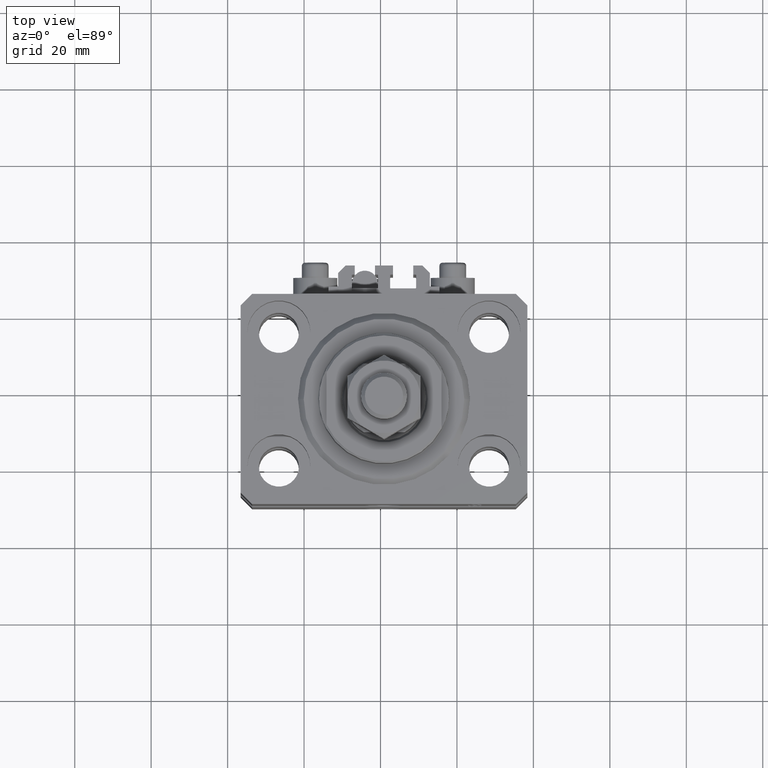
[diagram: clean part render]
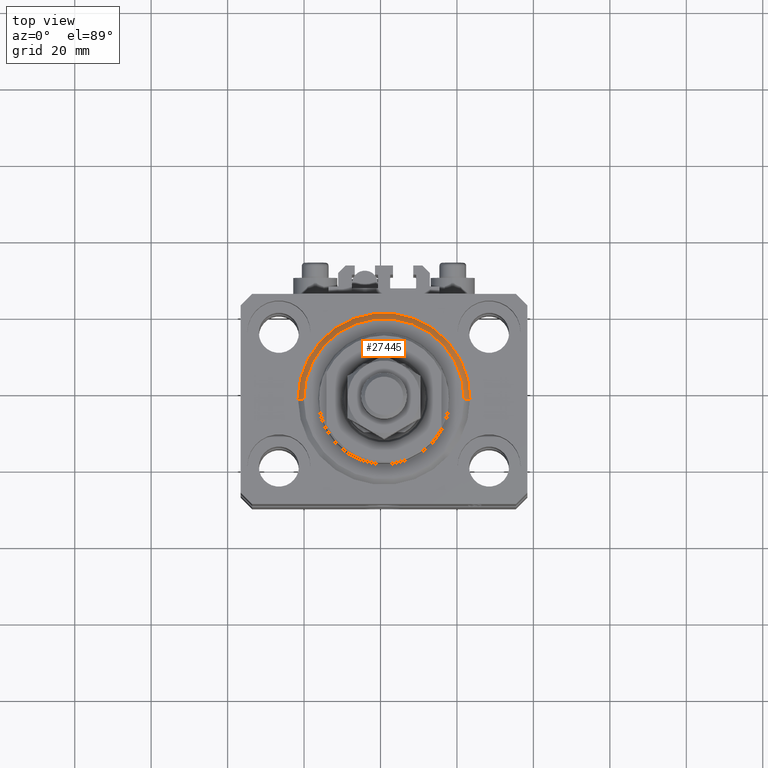
[diagram: same view with one face highlighted and labeled with its STEP entity id]
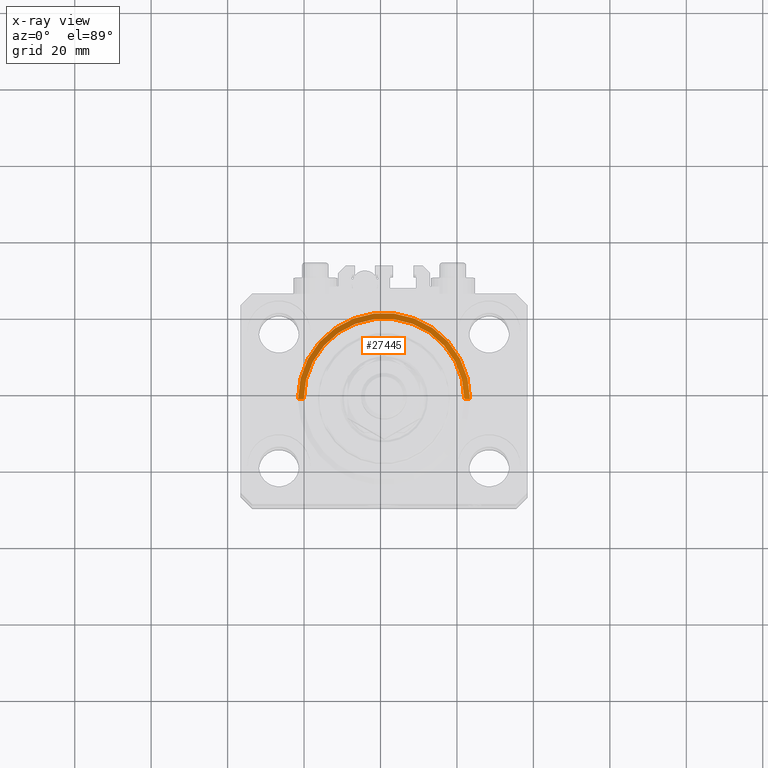
[diagram: x-ray of the same camera — body ghosted, the highlighted face saturated]
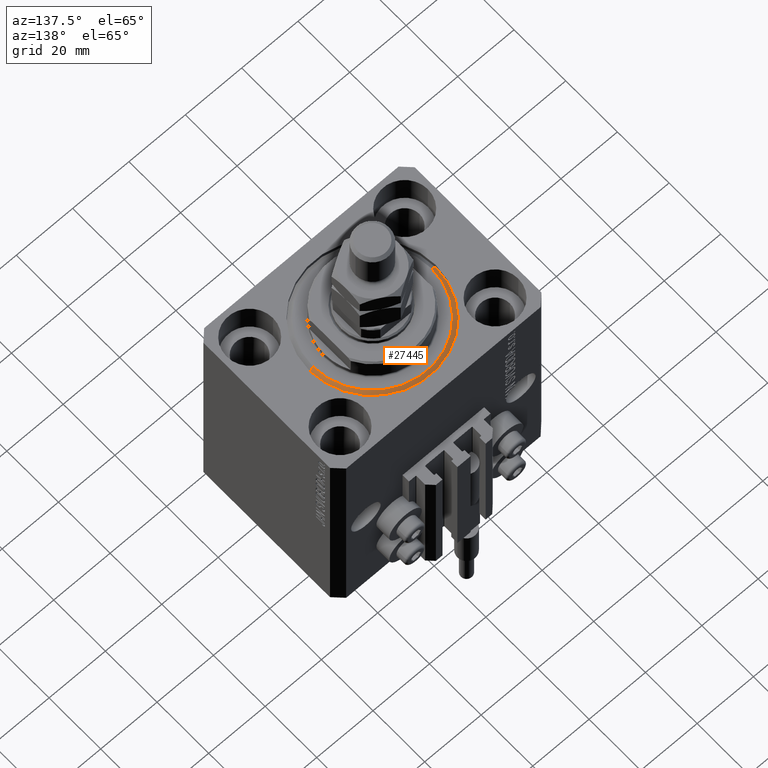
[diagram: same view with one face highlighted and labeled with its STEP entity id]
A machine part, top view. The second image highlights one B-rep face of the part: STEP entity #27445.
The next image is the same camera in x-ray: the body ghosted, the highlighted face saturated — about 0% of this face is hidden behind the body in this view.
A second angle (auxiliary view) of the same face is appended — the face is thin or edge-on in the first view.
In plain terms, the highlighted conical surface has half-angle 45 deg.
Its self-contained STEP definition (entity closure, byte-faithful):
#394 = EDGE_CURVE ( 'NONE', #16457, #32669, #44484, .T. ) ;
#2085 = ORIENTED_EDGE ( 'NONE', *, *, #12846, .T. ) ;
#2578 = EDGE_LOOP ( 'NONE', ( #43697, #2085, #35960, #19010 ) ) ;
#6431 = DIRECTION ( 'NONE',  ( 0.7071067811865500152, 0.000000000000000000, 0.7071067811865451302 ) ) ;
#8783 = AXIS2_PLACEMENT_3D ( 'NONE', #27981, #27742, #16058 ) ;
#10737 = DIRECTION ( 'NONE',  ( -0.7071067811865500152, 8.659560562354963673E-17, 0.7071067811865451302 ) ) ;
#11076 = CARTESIAN_POINT ( 'NONE',  ( 20.99999999999998934, 0.000000000000000000, 0.000000000000000000 ) ) ;
#12309 = DIRECTION ( 'NONE',  ( 1.000000000000000000, 0.000000000000000000, 0.000000000000000000 ) ) ;
#12846 = EDGE_CURVE ( 'NONE', #45483, #37075, #14963, .T. ) ;
#13743 = CONICAL_SURFACE ( 'NONE', #37573, 22.50000000000000355, 0.7853981633974517207 ) ;
#14963 = LINE ( 'NONE', #41069, #36322 ) ;
#16058 = DIRECTION ( 'NONE',  ( 1.000000000000000000, 0.000000000000000000, 0.000000000000000000 ) ) ;
#16378 = DIRECTION ( 'NONE',  ( 1.000000000000000000, 0.000000000000000000, 0.000000000000000000 ) ) ;
#16457 = VERTEX_POINT ( 'NONE', #11076 ) ;
#16718 = EDGE_CURVE ( 'NONE', #32669, #37075, #47552, .T. ) ;
#19010 = ORIENTED_EDGE ( 'NONE', *, *, #394, .F. ) ;
#19527 = EDGE_CURVE ( 'NONE', #45483, #16457, #21463, .T. ) ;
#20587 = FACE_OUTER_BOUND ( 'NONE', #2578, .T. ) ;
#20732 = CARTESIAN_POINT ( 'NONE',  ( 0.000000000000000000, 0.000000000000000000, 1.500000000000001332 ) ) ;
#21463 = CIRCLE ( 'NONE', #8783, 20.99999999999998934 ) ;
#24463 = DIRECTION ( 'NONE',  ( -0.000000000000000000, -0.000000000000000000, 1.000000000000000000 ) ) ;
#25154 = CARTESIAN_POINT ( 'NONE',  ( -20.99999999999998934, 2.663606788145492628E-15, 0.000000000000000000 ) ) ;
#26908 = AXIS2_PLACEMENT_3D ( 'NONE', #20732, #24463, #12309 ) ;
#27445 = ADVANCED_FACE ( 'NONE', ( #20587 ), #13743, .T. ) ;
#27742 = DIRECTION ( 'NONE',  ( -0.000000000000000000, -0.000000000000000000, -1.000000000000000000 ) ) ;
#27981 = CARTESIAN_POINT ( 'NONE',  ( 0.000000000000000000, 0.000000000000000000, 0.000000000000000000 ) ) ;
#32669 = VERTEX_POINT ( 'NONE', #45949 ) ;
#35960 = ORIENTED_EDGE ( 'NONE', *, *, #16718, .F. ) ;
#36289 = CARTESIAN_POINT ( 'NONE',  ( 22.50000000000000355, 0.000000000000000000, 1.500000000000001332 ) ) ;
#36322 = VECTOR ( 'NONE', #10737, 1000.000000000000114 ) ;
#37075 = VERTEX_POINT ( 'NONE', #46470 ) ;
#37573 = AXIS2_PLACEMENT_3D ( 'NONE', #39009, #46459, #16378 ) ;
#38447 = VECTOR ( 'NONE', #6431, 1000.000000000000114 ) ;
#39009 = CARTESIAN_POINT ( 'NONE',  ( 0.000000000000000000, 0.000000000000000000, 1.500000000000001332 ) ) ;
#41069 = CARTESIAN_POINT ( 'NONE',  ( -22.50000000000000355, 2.755455298081545172E-15, 1.500000000000001332 ) ) ;
#43697 = ORIENTED_EDGE ( 'NONE', *, *, #19527, .F. ) ;
#44484 = LINE ( 'NONE', #36289, #38447 ) ;
#45483 = VERTEX_POINT ( 'NONE', #25154 ) ;
#45949 = CARTESIAN_POINT ( 'NONE',  ( 22.50000000000000355, 2.755455298081545172E-15, 1.500000000000001332 ) ) ;
#46459 = DIRECTION ( 'NONE',  ( -0.000000000000000000, -0.000000000000000000, 1.000000000000000000 ) ) ;
#46470 = CARTESIAN_POINT ( 'NONE',  ( -22.50000000000000355, 0.000000000000000000, 1.500000000000001332 ) ) ;
#47552 = CIRCLE ( 'NONE', #26908, 22.50000000000000355 ) ;